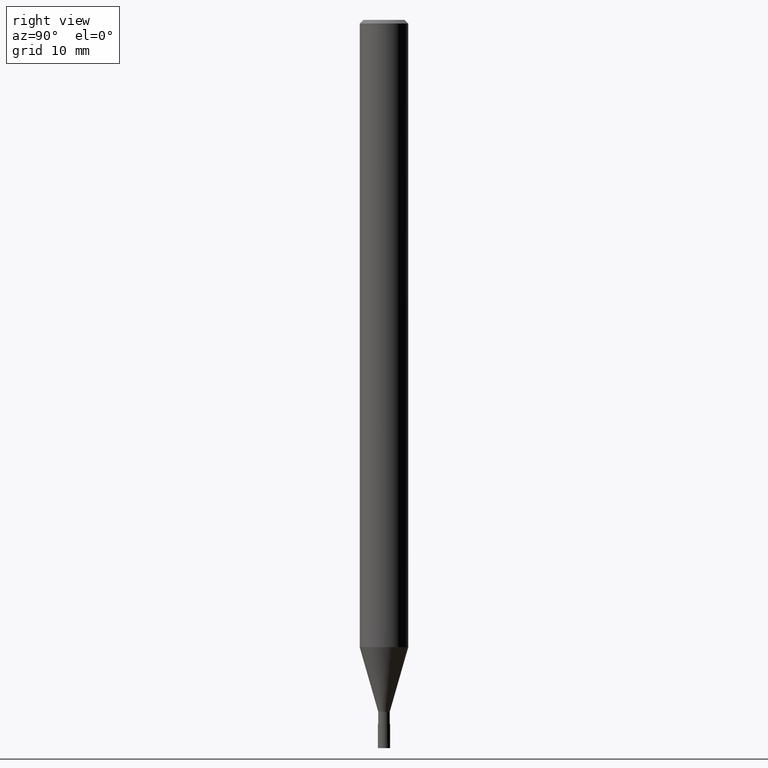
[diagram: clean part render]
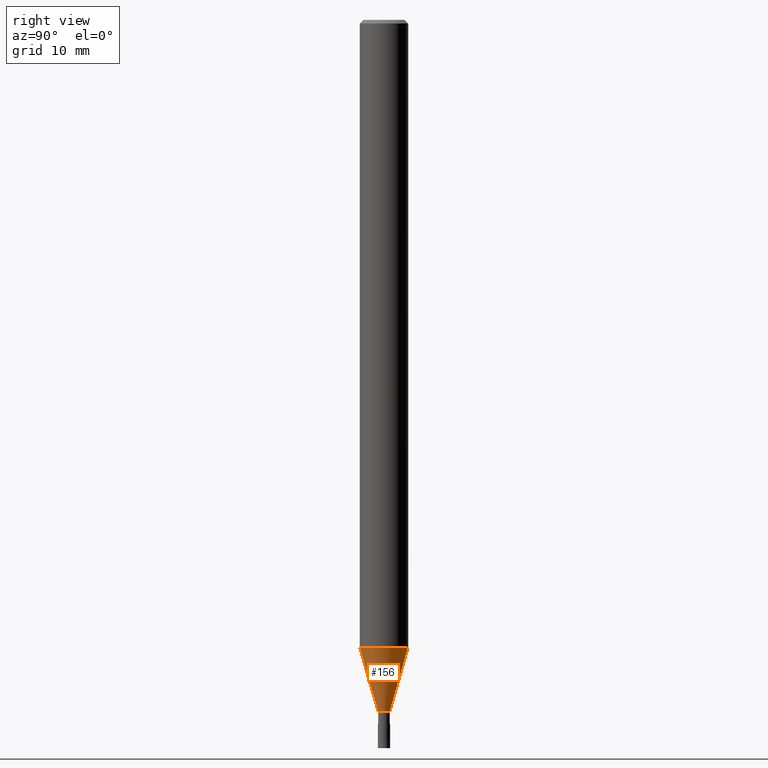
[diagram: same view with one face highlighted and labeled with its STEP entity id]
A machine part, right view. The second image highlights one B-rep face of the part: STEP entity #156.
In plain terms, the highlighted conical surface has half-angle 16.001 deg.
Its self-contained STEP definition (entity closure, byte-faithful):
#100=VERTEX_POINT('',#239);
#106=EDGE_CURVE('',#172,#100,#246,.T.);
#122=VERTEX_POINT('',#263);
#134=VERTEX_POINT('',#276);
#156=ADVANCED_FACE('',(#301),#302,.T.);
#162=EDGE_CURVE('',#122,#172,#308,.T.);
#172=VERTEX_POINT('',#320);
#192=EDGE_CURVE('',#100,#134,#343,.T.);
#194=EDGE_CURVE('',#122,#134,#345,.T.);
#239=CARTESIAN_POINT('',(5.81626787747938E-017,-0.47495,-57.0));
#246=CIRCLE('',#395,0.47495);
#263=CARTESIAN_POINT('',(0.0,1.99995,-51.682));
#276=CARTESIAN_POINT('',(2.44915147732706E-016,-1.99995,-51.682));
#301=FACE_OUTER_BOUND('',#460,.T.);
#302=CONICAL_SURFACE('',#461,1.23745,0.279267977304115);
#308=LINE('',#468,#469);
#320=CARTESIAN_POINT('',(0.0,0.47495,-57.0));
#343=LINE('',#514,#515);
#345=CIRCLE('',#518,1.99995);
#395=AXIS2_PLACEMENT_3D('',#571,#572,#573);
#460=EDGE_LOOP('',(#630,#631,#632,#633));
#461=AXIS2_PLACEMENT_3D('',#634,#635,#636);
#468=CARTESIAN_POINT('',(-1.5153891325375E-016,1.23745,-54.341));
#469=VECTOR('',#637,1.0);
#514=CARTESIAN_POINT('',(1.5153891325375E-016,-1.23745,-54.341));
#515=VECTOR('',#688,1.0);
#518=AXIS2_PLACEMENT_3D('',#689,#690,#691);
#571=CARTESIAN_POINT('',(0.0,0.0,-57.0));
#572=DIRECTION('',(0.0,0.0,-1.0));
#573=DIRECTION('',(0.0,1.0,0.0));
#630=ORIENTED_EDGE('',*,*,#162,.F.);
#631=ORIENTED_EDGE('',*,*,#194,.T.);
#632=ORIENTED_EDGE('',*,*,#192,.F.);
#633=ORIENTED_EDGE('',*,*,#106,.F.);
#634=CARTESIAN_POINT('',(0.0,0.0,-54.341));
#635=DIRECTION('',(-0.0,-0.0,1.0));
#636=DIRECTION('',(0.0,1.0,0.0));
#637=DIRECTION('',(3.37565264353533E-017,-0.275652060190515,-0.961257479405349));
#688=DIRECTION('',(3.37565264353533E-017,-0.275652060190515,0.961257479405349));
#689=CARTESIAN_POINT('',(0.0,0.0,-51.682));
#690=DIRECTION('',(0.0,0.0,-1.0));
#691=DIRECTION('',(0.0,1.0,0.0));